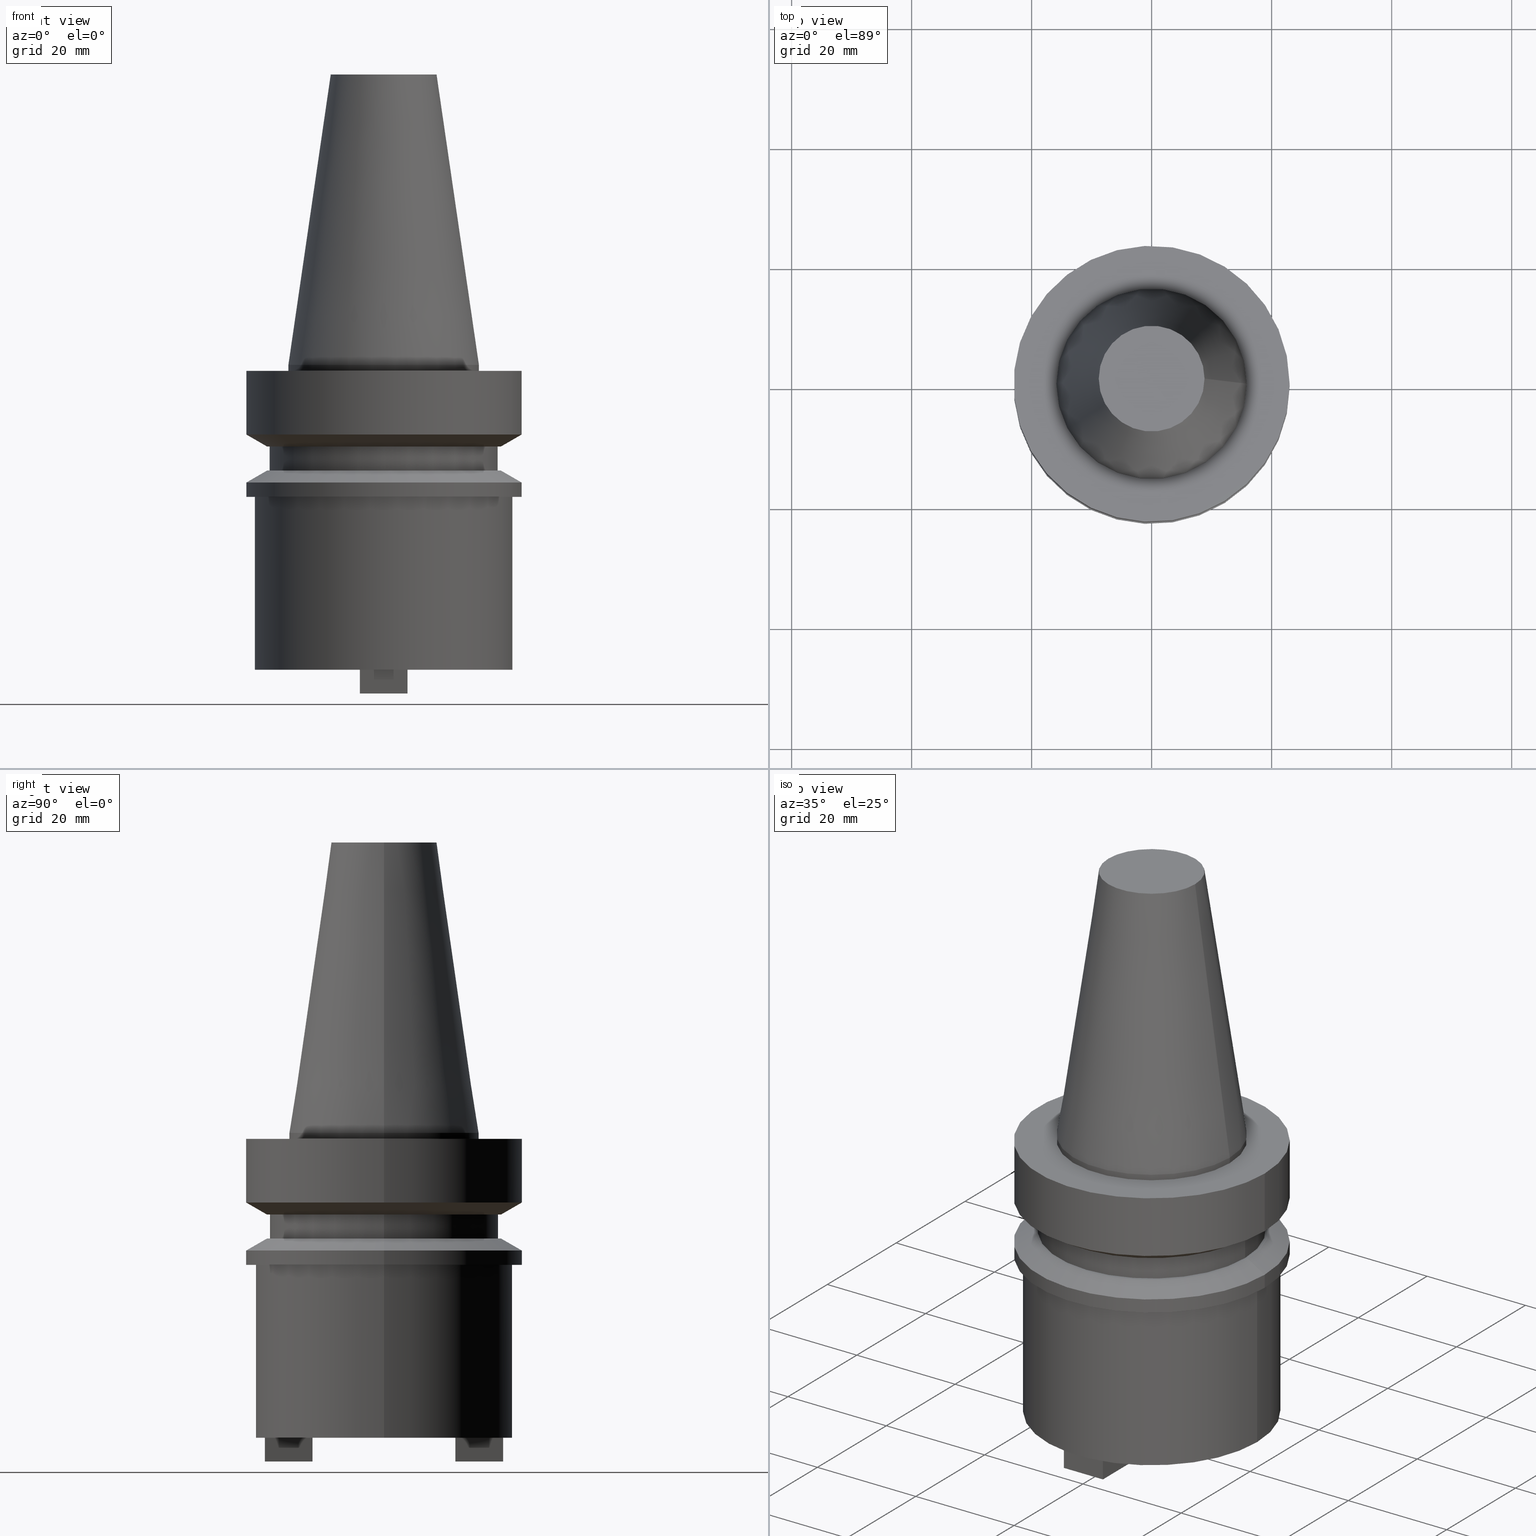
[diagram: canonical four-view strip — front | top / right | iso, engineering-drawing reading convention]
A machine part, canonical four-view strip (front | top / right | iso — engineering-drawing reading convention). The complete STEP part file that produces these views, byte-faithful:
ISO-10303-21;
HEADER;
FILE_DESCRIPTION (( 'STEP AP203' ),
    '1' );
FILE_NAME ('BBT30-SMC_750-2.stp',
    '2022-03-09T16:54:16',
    ( '' ),
    ( '' ),
    'SwSTEP 2.0',
    'SolidWorks 2021',
    '' );
FILE_SCHEMA (( 'CONFIG_CONTROL_DESIGN' ));
ENDSEC;

DATA;
#1 = CALENDAR_DATE ( 2022, 9, 3 ) ;
#2 = CARTESIAN_POINT ( 'NONE',  ( 0.000000000000000000, 0.000000000000000000, -1.000000000000000888 ) ) ;
#3 = EDGE_LOOP ( 'NONE', ( #561 ) ) ;
#4 = CARTESIAN_POINT ( 'NONE',  ( -3.970000000000000639, 19.84500000000000597, -50.79999999999999716 ) ) ;
#5 = EDGE_LOOP ( 'NONE', ( #606 ) ) ;
#6 = VECTOR ( 'NONE', #80, 1000.000000000000000 ) ;
#7 = AXIS2_PLACEMENT_3D ( 'NONE', #277, #8, #101 ) ;
#8 = DIRECTION ( 'NONE',  ( -0.000000000000000000, -0.000000000000000000, 1.000000000000000000 ) ) ;
#9 = ORIENTED_EDGE ( 'NONE', *, *, #676, .F. ) ;
#10 = LOCAL_TIME ( 10, 54, 16.00000000000000000, #319 ) ;
#11 = ADVANCED_FACE ( 'NONE', ( #325 ), #219, .F. ) ;
#12 = SHAPE_DEFINITION_REPRESENTATION ( #135, #603 ) ;
#13 = CARTESIAN_POINT ( 'NONE',  ( -3.970000000000001528, -19.84500000000000597, -54.75999999999999801 ) ) ;
#14 = CARTESIAN_POINT ( 'NONE',  ( 0.000000000000000000, 0.000000000000000000, -11.60014200631680126 ) ) ;
#15 = FACE_OUTER_BOUND ( 'NONE', #252, .T. ) ;
#16 = DIRECTION ( 'NONE',  ( 0.000000000000000000, 0.000000000000000000, -1.000000000000000000 ) ) ;
#17 = EDGE_CURVE ( 'NONE', #88, #88, #270, .T. ) ;
#18 = DIRECTION ( 'NONE',  ( 0.000000000000000000, 1.000000000000000000, 0.000000000000000000 ) ) ;
#19 = PLANE ( 'NONE',  #131 ) ;
#20 = AXIS2_PLACEMENT_3D ( 'NONE', #553, #644, #448 ) ;
#21 = DIRECTION ( 'NONE',  ( 1.000000000000000000, 0.000000000000000000, 0.000000000000000000 ) ) ;
#22 = PRODUCT_DEFINITION ( 'UNKNOWN', '', #237, #248 ) ;
#23 = CARTESIAN_POINT ( 'NONE',  ( 3.970000000000001972, -11.90500000000000469, -54.75999999999999801 ) ) ;
#24 = FACE_OUTER_BOUND ( 'NONE', #309, .T. ) ;
#25 = DIRECTION ( 'NONE',  ( 1.000000000000000000, 0.000000000000000000, 0.000000000000000000 ) ) ;
#26 = ORIENTED_EDGE ( 'NONE', *, *, #485, .F. ) ;
#27 = ADVANCED_FACE ( 'NONE', ( #501, #495 ), #453, .F. ) ;
#28 = FACE_OUTER_BOUND ( 'NONE', #573, .T. ) ;
#29 = FACE_BOUND ( 'NONE', #465, .T. ) ;
#30 = CIRCLE ( 'NONE', #488, 19.53589838486230690 ) ;
#31 = AXIS2_PLACEMENT_3D ( 'NONE', #2, #50, #672 ) ;
#32 = CARTESIAN_POINT ( 'NONE',  ( 19.00000000000000355, 0.000000000000000000, -17.60014200631680836 ) ) ;
#33 = FACE_OUTER_BOUND ( 'NONE', #330, .T. ) ;
#34 = ORIENTED_EDGE ( 'NONE', *, *, #102, .F. ) ;
#35 = CARTESIAN_POINT ( 'NONE',  ( 0.000000000000000000, 8.816600212367498912, 48.39999999999999147 ) ) ;
#36 = DIRECTION ( 'NONE',  ( -0.000000000000000000, -0.000000000000000000, 1.000000000000000000 ) ) ;
#37 = ORIENTED_EDGE ( 'NONE', *, *, #72, .T. ) ;
#38 = VERTEX_POINT ( 'NONE', #415 ) ;
#39 = EDGE_CURVE ( 'NONE', #187, #187, #467, .T. ) ;
#40 = FACE_BOUND ( 'NONE', #5, .T. ) ;
#41 = ORIENTED_EDGE ( 'NONE', *, *, #175, .F. ) ;
#42 = CONICAL_SURFACE ( 'NONE', #158, 19.53589838486230690, 1.047197551196589860 ) ;
#43 = VECTOR ( 'NONE', #572, 1000.000000000000000 ) ;
#44 = AXIS2_PLACEMENT_3D ( 'NONE', #539, #68, #282 ) ;
#45 = AXIS2_PLACEMENT_3D ( 'NONE', #597, #585, #21 ) ;
#46 = VERTEX_POINT ( 'NONE', #304 ) ;
#47 = FACE_OUTER_BOUND ( 'NONE', #408, .T. ) ;
#48 = VERTEX_POINT ( 'NONE', #23 ) ;
#49 = PERSON_AND_ORGANIZATION ( #337, #327 ) ;
#50 = DIRECTION ( 'NONE',  ( -0.000000000000000000, -0.000000000000000000, 1.000000000000000000 ) ) ;
#51 = ORIENTED_EDGE ( 'NONE', *, *, #352, .T. ) ;
#52 = EDGE_CURVE ( 'NONE', #227, #172, #189, .T. ) ;
#53 = DATE_TIME_ROLE ( 'classification_date' ) ;
#54 = LINE ( 'NONE', #4, #43 ) ;
#55 = VERTEX_POINT ( 'NONE', #341 ) ;
#56 = AXIS2_PLACEMENT_3D ( 'NONE', #663, #312, #610 ) ;
#57 = APPROVAL_ROLE ( '' ) ;
#58 = VECTOR ( 'NONE', #244, 1000.000000000000000 ) ;
#59 = DIRECTION ( 'NONE',  ( 1.000000000000000000, 0.000000000000000000, 0.000000000000000000 ) ) ;
#60 = ORIENTED_EDGE ( 'NONE', *, *, #186, .T. ) ;
#61 = CARTESIAN_POINT ( 'NONE',  ( -3.970000000000001528, 11.90500000000000114, -54.75999999999999801 ) ) ;
#62 = ORIENTED_EDGE ( 'NONE', *, *, #668, .T. ) ;
#63 = COORDINATED_UNIVERSAL_TIME_OFFSET ( 6, 0, .BEHIND. ) ;
#64 = DIRECTION ( 'NONE',  ( 1.092395136005545440E-16, 1.000000000000000000, -0.000000000000000000 ) ) ;
#65 = EDGE_CURVE ( 'NONE', #200, #255, #353, .T. ) ;
#66 = VERTEX_POINT ( 'NONE', #74 ) ;
#67 = VECTOR ( 'NONE', #355, 1000.000000000000000 ) ;
#68 = DIRECTION ( 'NONE',  ( 0.000000000000000000, 0.000000000000000000, -1.000000000000000000 ) ) ;
#69 = DIRECTION ( 'NONE',  ( -0.000000000000000000, -0.000000000000000000, 1.000000000000000000 ) ) ;
#70 = FACE_BOUND ( 'NONE', #608, .T. ) ;
#71 = CARTESIAN_POINT ( 'NONE',  ( 0.000000000000000000, 22.99999999999998934, -22.00000000000000000 ) ) ;
#72 = EDGE_CURVE ( 'NONE', #137, #137, #389, .T. ) ;
#73 = DIRECTION ( 'NONE',  ( 0.000000000000000000, -0.000000000000000000, 1.000000000000000000 ) ) ;
#74 = CARTESIAN_POINT ( 'NONE',  ( -3.970000000000000639, 19.84500000000000242, -50.79999999999999716 ) ) ;
#75 = DIRECTION ( 'NONE',  ( 0.000000000000000000, 0.000000000000000000, -1.000000000000000000 ) ) ;
#76 = DIRECTION ( 'NONE',  ( 1.000000000000000000, 0.000000000000000000, 0.000000000000000000 ) ) ;
#77 = VECTOR ( 'NONE', #324, 1000.000000000000000 ) ;
#78 = ORIENTED_EDGE ( 'NONE', *, *, #146, .T. ) ;
#79 = CYLINDRICAL_SURFACE ( 'NONE', #20, 23.00000000000000000 ) ;
#80 = DIRECTION ( 'NONE',  ( 1.000000000000000000, -4.369580544022183733E-16, -0.000000000000000000 ) ) ;
#81 = ORIENTED_EDGE ( 'NONE', *, *, #289, .T. ) ;
#82 =( NAMED_UNIT ( * ) PLANE_ANGLE_UNIT ( ) SI_UNIT ( $, .RADIAN. ) );
#83 = LINE ( 'NONE', #457, #67 ) ;
#84 = CARTESIAN_POINT ( 'NONE',  ( 15.87500000000000000, 0.000000000000000000, 0.000000000000000000 ) ) ;
#85 = DIRECTION ( 'NONE',  ( 0.000000000000000000, 0.000000000000000000, -1.000000000000000000 ) ) ;
#86 = CIRCLE ( 'NONE', #478, 19.53589838486230690 ) ;
#87 = ORIENTED_EDGE ( 'NONE', *, *, #297, .T. ) ;
#88 = VERTEX_POINT ( 'NONE', #148 ) ;
#89 = CARTESIAN_POINT ( 'NONE',  ( -3.970000000000000639, 19.84500000000000597, -54.75999999999999801 ) ) ;
#90 = EDGE_LOOP ( 'NONE', ( #94 ) ) ;
#91 = EDGE_CURVE ( 'NONE', #364, #364, #188, .T. ) ;
#92 = VERTEX_POINT ( 'NONE', #253 ) ;
#93 = CARTESIAN_POINT ( 'NONE',  ( 0.000000000000000000, 0.000000000000000000, 0.000000000000000000 ) ) ;
#94 = ORIENTED_EDGE ( 'NONE', *, *, #328, .T. ) ;
#95 = DIRECTION ( 'NONE',  ( 1.000000000000000000, 0.000000000000000000, 0.000000000000000000 ) ) ;
#96 = ORIENTED_EDGE ( 'NONE', *, *, #596, .F. ) ;
#97 = VECTOR ( 'NONE', #464, 1000.000000000000000 ) ;
#98 = CIRCLE ( 'NONE', #31, 15.87500000000000000 ) ;
#99 = CC_DESIGN_SECURITY_CLASSIFICATION ( #401, ( #237 ) ) ;
#100 = DATE_AND_TIME ( #581, #10 ) ;
#101 = DIRECTION ( 'NONE',  ( 1.000000000000000000, 0.000000000000000000, 0.000000000000000000 ) ) ;
#102 = EDGE_CURVE ( 'NONE', #440, #592, #285, .T. ) ;
#103 = ORIENTED_EDGE ( 'NONE', *, *, #272, .T. ) ;
#104 = PERSON_AND_ORGANIZATION ( #337, #327 ) ;
#105 = PLANE ( 'NONE',  #622 ) ;
#106 = ORIENTED_EDGE ( 'NONE', *, *, #421, .T. ) ;
#107 = APPROVAL ( #567, 'UNSPECIFIED' ) ;
#108 = CARTESIAN_POINT ( 'NONE',  ( 0.000000000000000000, 0.000000000000000000, -19.60014200631680836 ) ) ;
#109 = ORIENTED_EDGE ( 'NONE', *, *, #584, .T. ) ;
#110 = APPROVAL_DATE_TIME ( #216, #222 ) ;
#111 = CIRCLE ( 'NONE', #300, 19.00000000000000355 ) ;
#112 = LINE ( 'NONE', #535, #507 ) ;
#113 = ORIENTED_EDGE ( 'NONE', *, *, #155, .F. ) ;
#114 = DATE_AND_TIME ( #621, #225 ) ;
#115 = ADVANCED_FACE ( 'NONE', ( #351, #132 ), #294, .T. ) ;
#116 = LINE ( 'NONE', #220, #77 ) ;
#117 = ORIENTED_EDGE ( 'NONE', *, *, #136, .F. ) ;
#118 = FACE_BOUND ( 'NONE', #366, .T. ) ;
#119 = ORIENTED_EDGE ( 'NONE', *, *, #511, .F. ) ;
#120 = VECTOR ( 'NONE', #648, 1000.000000000000000 ) ;
#121 = CARTESIAN_POINT ( 'NONE',  ( 0.000000000000000000, 0.000000000000000000, -50.79999999999999716 ) ) ;
#122 = AXIS2_PLACEMENT_3D ( 'NONE', #275, #633, #171 ) ;
#123 = CARTESIAN_POINT ( 'NONE',  ( 0.000000000000000000, 0.000000000000000000, -22.00000000000000000 ) ) ;
#124 = ADVANCED_FACE ( 'NONE', ( #128 ), #19, .F. ) ;
#125 = FACE_OUTER_BOUND ( 'NONE', #586, .T. ) ;
#126 = DIRECTION ( 'NONE',  ( -0.000000000000000000, -0.000000000000000000, 1.000000000000000000 ) ) ;
#127 = CARTESIAN_POINT ( 'NONE',  ( 3.969999999999999751, -19.84500000000000597, -50.79999999999999716 ) ) ;
#128 = FACE_OUTER_BOUND ( 'NONE', #303, .T. ) ;
#129 = ORIENTED_EDGE ( 'NONE', *, *, #218, .T. ) ;
#130 = FACE_OUTER_BOUND ( 'NONE', #664, .T. ) ;
#131 = AXIS2_PLACEMENT_3D ( 'NONE', #446, #283, #642 ) ;
#132 = FACE_OUTER_BOUND ( 'NONE', #524, .T. ) ;
#133 = AXIS2_PLACEMENT_3D ( 'NONE', #662, #600, #198 ) ;
#134 = LOCAL_TIME ( 10, 54, 16.00000000000000000, #528 ) ;
#135 = PRODUCT_DEFINITION_SHAPE ( 'NONE', 'NONE',  #22 ) ;
#136 = EDGE_CURVE ( 'NONE', #400, #400, #30, .T. ) ;
#137 = VERTEX_POINT ( 'NONE', #194 ) ;
#138 = CARTESIAN_POINT ( 'NONE',  ( 3.970000000000001972, -11.90500000000000469, -50.79999999999999716 ) ) ;
#139 = CARTESIAN_POINT ( 'NONE',  ( 0.000000000000000000, 19.53589838486230690, -13.60014200631680303 ) ) ;
#140 = ORIENTED_EDGE ( 'NONE', *, *, #310, .T. ) ;
#141 = CARTESIAN_POINT ( 'NONE',  ( 0.000000000000000000, 0.000000000000000000, 0.000000000000000000 ) ) ;
#142 = PLANE ( 'NONE',  #223 ) ;
#143 = AXIS2_PLACEMENT_3D ( 'NONE', #123, #69, #25 ) ;
#144 = ORIENTED_EDGE ( 'NONE', *, *, #668, .F. ) ;
#145 = AXIS2_PLACEMENT_3D ( 'NONE', #555, #296, #505 ) ;
#146 = EDGE_CURVE ( 'NONE', #354, #354, #368, .T. ) ;
#147 = CC_DESIGN_APPROVAL ( #580, ( #22 ) ) ;
#148 = CARTESIAN_POINT ( 'NONE',  ( 21.44999999999999929, 0.000000000000000000, -50.79999999999999716 ) ) ;
#149 = CARTESIAN_POINT ( 'NONE',  ( 0.000000000000000000, 0.000000000000000000, -17.60014200631680836 ) ) ;
#150 = ORIENTED_EDGE ( 'NONE', *, *, #463, .T. ) ;
#151 = LINE ( 'NONE', #665, #281 ) ;
#152 = FACE_OUTER_BOUND ( 'NONE', #318, .T. ) ;
#153 = EDGE_LOOP ( 'NONE', ( #374, #536, #161, #614 ) ) ;
#154 = PERSON_AND_ORGANIZATION ( #337, #327 ) ;
#155 = EDGE_CURVE ( 'NONE', #405, #292, #181, .T. ) ;
#156 = CARTESIAN_POINT ( 'NONE',  ( 3.970000000000000639, 19.84500000000000242, -54.75999999999999801 ) ) ;
#157 = EDGE_LOOP ( 'NONE', ( #667 ) ) ;
#158 = AXIS2_PLACEMENT_3D ( 'NONE', #365, #411, #301 ) ;
#159 = CONICAL_SURFACE ( 'NONE', #550, 22.99999999999999645, 1.047197551196588972 ) ;
#160 = DIRECTION ( 'NONE',  ( 1.000000000000000000, 0.000000000000000000, 0.000000000000000000 ) ) ;
#161 = ORIENTED_EDGE ( 'NONE', *, *, #437, .F. ) ;
#162 = DATE_TIME_ROLE ( 'creation_date' ) ;
#163 = CARTESIAN_POINT ( 'NONE',  ( -3.969999999999998863, -11.90500000000000469, -54.75999999999999801 ) ) ;
#164 = EDGE_LOOP ( 'NONE', ( #557 ) ) ;
#165 = APPLICATION_PROTOCOL_DEFINITION ( 'international standard', 'config_control_design', 1994, #261 ) ;
#166 = CARTESIAN_POINT ( 'NONE',  ( 0.000000000000000000, 0.000000000000000000, -1.000000000000000888 ) ) ;
#167 = DIRECTION ( 'NONE',  ( 1.000000000000000000, 0.000000000000000000, 0.000000000000000000 ) ) ;
#168 = EDGE_CURVE ( 'NONE', #313, #292, #443, .T. ) ;
#169 = AXIS2_PLACEMENT_3D ( 'NONE', #598, #402, #601 ) ;
#170 = AXIS2_PLACEMENT_3D ( 'NONE', #530, #273, #369 ) ;
#171 = DIRECTION ( 'NONE',  ( -3.277185408016637677E-16, -1.000000000000000000, 0.000000000000000000 ) ) ;
#172 = VERTEX_POINT ( 'NONE', #288 ) ;
#173 = FACE_OUTER_BOUND ( 'NONE', #278, .T. ) ;
#174 = EDGE_LOOP ( 'NONE', ( #269 ) ) ;
#175 = EDGE_CURVE ( 'NONE', #377, #592, #391, .T. ) ;
#176 = DIRECTION ( 'NONE',  ( -0.000000000000000000, -0.000000000000000000, 1.000000000000000000 ) ) ;
#177 = DIRECTION ( 'NONE',  ( -0.000000000000000000, -0.000000000000000000, 1.000000000000000000 ) ) ;
#178 = DIRECTION ( 'NONE',  ( 0.000000000000000000, -1.000000000000000000, -0.000000000000000000 ) ) ;
#179 = CIRCLE ( 'NONE', #170, 22.99999999999999645 ) ;
#180 = CC_DESIGN_PERSON_AND_ORGANIZATION_ASSIGNMENT ( #104, #481, ( #237 ) ) ;
#181 = LINE ( 'NONE', #291, #455 ) ;
#182 = CARTESIAN_POINT ( 'NONE',  ( -3.970000000000000639, 19.84500000000000597, -54.75999999999999801 ) ) ;
#183 = LINE ( 'NONE', #451, #120 ) ;
#184 = DIRECTION ( 'NONE',  ( 1.092395136005545564E-16, 1.000000000000000000, 0.000000000000000000 ) ) ;
#185 = CARTESIAN_POINT ( 'NONE',  ( 3.969999999999997087, 11.90500000000000114, -50.79999999999999716 ) ) ;
#186 = EDGE_CURVE ( 'NONE', #46, #46, #422, .T. ) ;
#187 = VERTEX_POINT ( 'NONE', #84 ) ;
#188 = CIRCLE ( 'NONE', #548, 21.44999999999999929 ) ;
#189 = LINE ( 'NONE', #588, #6 ) ;
#190 = AXIS2_PLACEMENT_3D ( 'NONE', #320, #226, #59 ) ;
#191 = CC_DESIGN_DATE_AND_TIME_ASSIGNMENT ( #418, #162, ( #22 ) ) ;
#192 = PLANE ( 'NONE',  #674 ) ;
#193 = EDGE_LOOP ( 'NONE', ( #306 ) ) ;
#194 = CARTESIAN_POINT ( 'NONE',  ( 4.214999999999998082, 0.000000000000000000, -22.00000000000000000 ) ) ;
#195 = EDGE_CURVE ( 'NONE', #66, #516, #183, .T. ) ;
#196 = CARTESIAN_POINT ( 'NONE',  ( -3.969999999999998863, -11.90500000000000291, -50.79999999999999716 ) ) ;
#197 = EDGE_LOOP ( 'NONE', ( #37 ) ) ;
#198 = DIRECTION ( 'NONE',  ( 1.000000000000000000, 0.000000000000000000, 0.000000000000000000 ) ) ;
#199 = CARTESIAN_POINT ( 'NONE',  ( -3.969999999999998863, -11.90500000000000469, -54.75999999999999801 ) ) ;
#200 = VERTEX_POINT ( 'NONE', #185 ) ;
#201 = VECTOR ( 'NONE', #627, 1000.000000000000000 ) ;
#202 = VERTEX_POINT ( 'NONE', #609 ) ;
#203 = FACE_BOUND ( 'NONE', #164, .T. ) ;
#204 = ORIENTED_EDGE ( 'NONE', *, *, #272, .F. ) ;
#205 = DATE_AND_TIME ( #471, #447 ) ;
#206 = FACE_OUTER_BOUND ( 'NONE', #470, .T. ) ;
#207 = ORIENTED_EDGE ( 'NONE', *, *, #392, .T. ) ;
#208 = PERSON_AND_ORGANIZATION ( #337, #327 ) ;
#209 = CYLINDRICAL_SURFACE ( 'NONE', #190, 4.214999999999998082 ) ;
#210 = EDGE_LOOP ( 'NONE', ( #521 ) ) ;
#211 = AXIS2_PLACEMENT_3D ( 'NONE', #93, #85, #655 ) ;
#212 = CIRCLE ( 'NONE', #623, 22.99999999999999645 ) ;
#213 = PERSON_AND_ORGANIZATION ( #337, #327 ) ;
#214 = FACE_OUTER_BOUND ( 'NONE', #595, .T. ) ;
#215 = ORIENTED_EDGE ( 'NONE', *, *, #168, .F. ) ;
#216 = DATE_AND_TIME ( #1, #134 ) ;
#217 = CARTESIAN_POINT ( 'NONE',  ( 3.969999999999999751, -19.84500000000000597, -54.75999999999999801 ) ) ;
#218 = EDGE_CURVE ( 'NONE', #202, #202, #549, .T. ) ;
#219 = PLANE ( 'NONE',  #335 ) ;
#220 = CARTESIAN_POINT ( 'NONE',  ( 3.969999999999997087, 11.90500000000000114, -54.75999999999999801 ) ) ;
#221 = EDGE_LOOP ( 'NONE', ( #673 ) ) ;
#222 = APPROVAL ( #626, 'UNSPECIFIED' ) ;
#223 = AXIS2_PLACEMENT_3D ( 'NONE', #358, #660, #560 ) ;
#224 = CIRCLE ( 'NONE', #7, 19.00000000000000355 ) ;
#225 = LOCAL_TIME ( 10, 54, 16.00000000000000000, #522 ) ;
#226 = DIRECTION ( 'NONE',  ( -0.000000000000000000, -0.000000000000000000, 1.000000000000000000 ) ) ;
#227 = VERTEX_POINT ( 'NONE', #89 ) ;
#228 = ADVANCED_FACE ( 'NONE', ( #40, #468 ), #346, .T. ) ;
#229 = FACE_OUTER_BOUND ( 'NONE', #210, .T. ) ;
#230 = DIRECTION ( 'NONE',  ( -0.000000000000000000, -0.000000000000000000, 1.000000000000000000 ) ) ;
#231 = EDGE_CURVE ( 'NONE', #48, #377, #83, .T. ) ;
#232 = DIRECTION ( 'NONE',  ( -0.000000000000000000, -0.000000000000000000, 1.000000000000000000 ) ) ;
#233 = DIRECTION ( 'NONE',  ( -3.277185408016637677E-16, -1.000000000000000000, 0.000000000000000000 ) ) ;
#234 = AXIS2_PLACEMENT_3D ( 'NONE', #396, #666, #509 ) ;
#235 = VECTOR ( 'NONE', #537, 1000.000000000000000 ) ;
#236 = DIRECTION ( 'NONE',  ( 0.000000000000000000, -0.000000000000000000, 1.000000000000000000 ) ) ;
#237 = PRODUCT_DEFINITION_FORMATION_WITH_SPECIFIED_SOURCE ( 'ANY', '', #367, .NOT_KNOWN. ) ;
#238 = DIRECTION ( 'NONE',  ( -0.000000000000000000, -0.000000000000000000, 1.000000000000000000 ) ) ;
#239 = PLANE ( 'NONE',  #44 ) ;
#240 = CARTESIAN_POINT ( 'NONE',  ( 0.000000000000000000, 0.000000000000000000, -21.99999999999999289 ) ) ;
#241 = ADVANCED_FACE ( 'NONE', ( #152 ), #404, .F. ) ;
#242 = LINE ( 'NONE', #340, #350 ) ;
#243 = CARTESIAN_POINT ( 'NONE',  ( 0.000000000000000000, 0.000000000000000000, -22.00000000000000000 ) ) ;
#244 = DIRECTION ( 'NONE',  ( 1.000000000000000000, -0.000000000000000000, -0.000000000000000000 ) ) ;
#245 = AXIS2_PLACEMENT_3D ( 'NONE', #71, #492, #394 ) ;
#246 = FACE_OUTER_BOUND ( 'NONE', #3, .T. ) ;
#247 = AXIS2_PLACEMENT_3D ( 'NONE', #491, #18, #236 ) ;
#248 = DESIGN_CONTEXT ( 'detailed design', #261, 'design' ) ;
#249 = ADVANCED_FACE ( 'NONE', ( #251, #203 ), #42, .T. ) ;
#250 = CARTESIAN_POINT ( 'NONE',  ( 23.00000000000000355, 0.000000000000000000, -11.60014200631680126 ) ) ;
#251 = FACE_OUTER_BOUND ( 'NONE', #566, .T. ) ;
#252 = EDGE_LOOP ( 'NONE', ( #103, #119, #276, #429 ) ) ;
#253 = CARTESIAN_POINT ( 'NONE',  ( 19.00000000000000355, 0.000000000000000000, -13.60014200631680303 ) ) ;
#254 = FACE_BOUND ( 'NONE', #424, .T. ) ;
#255 = VERTEX_POINT ( 'NONE', #308 ) ;
#256 = VECTOR ( 'NONE', #669, 1000.000000000000000 ) ;
#257 = CARTESIAN_POINT ( 'NONE',  ( 3.969999999999999751, -19.84500000000000597, -50.79999999999999716 ) ) ;
#258 = ORIENTED_EDGE ( 'NONE', *, *, #289, .F. ) ;
#259 = AXIS2_PLACEMENT_3D ( 'NONE', #387, #75, #587 ) ;
#260 = VERTEX_POINT ( 'NONE', #651 ) ;
#261 = APPLICATION_CONTEXT ( 'configuration controlled 3d designs of mechanical parts and assemblies' ) ;
#262 = FACE_OUTER_BOUND ( 'NONE', #321, .T. ) ;
#263 = ORIENTED_EDGE ( 'NONE', *, *, #413, .T. ) ;
#264 = ADVANCED_FACE ( 'NONE', ( #33, #407 ), #192, .F. ) ;
#265 = LINE ( 'NONE', #163, #235 ) ;
#266 = ORIENTED_EDGE ( 'NONE', *, *, #328, .F. ) ;
#267 = APPROVAL_STATUS ( 'not_yet_approved' ) ;
#268 = LINE ( 'NONE', #637, #399 ) ;
#269 = ORIENTED_EDGE ( 'NONE', *, *, #72, .F. ) ;
#270 = CIRCLE ( 'NONE', #653, 21.44999999999999929 ) ;
#271 = AXIS2_PLACEMENT_3D ( 'NONE', #385, #178, #546 ) ;
#272 = EDGE_CURVE ( 'NONE', #592, #405, #565, .T. ) ;
#273 = DIRECTION ( 'NONE',  ( -0.000000000000000000, -0.000000000000000000, 1.000000000000000000 ) ) ;
#274 = ORIENTED_EDGE ( 'NONE', *, *, #474, .F. ) ;
#275 = CARTESIAN_POINT ( 'NONE',  ( 3.970000000000001972, -11.90500000000000469, -54.75999999999999801 ) ) ;
#276 = ORIENTED_EDGE ( 'NONE', *, *, #352, .F. ) ;
#277 = CARTESIAN_POINT ( 'NONE',  ( 0.000000000000000000, 0.000000000000000000, -13.60014200631680303 ) ) ;
#278 = EDGE_LOOP ( 'NONE', ( #140 ) ) ;
#279 = ADVANCED_FACE ( 'NONE', ( #47 ), #142, .T. ) ;
#280 = VECTOR ( 'NONE', #238, 1000.000000000000000 ) ;
#281 = VECTOR ( 'NONE', #357, 1000.000000000000000 ) ;
#282 = DIRECTION ( 'NONE',  ( -1.000000000000000000, 0.000000000000000000, -0.000000000000000000 ) ) ;
#283 = DIRECTION ( 'NONE',  ( -4.369580544022184226E-16, -1.000000000000000000, 0.000000000000000000 ) ) ;
#284 = FACE_OUTER_BOUND ( 'NONE', #370, .T. ) ;
#285 = LINE ( 'NONE', #138, #619 ) ;
#286 = ORIENTED_EDGE ( 'NONE', *, *, #52, .F. ) ;
#287 = PLANE ( 'NONE',  #247 ) ;
#288 = CARTESIAN_POINT ( 'NONE',  ( 3.970000000000000639, 19.84500000000000242, -54.75999999999999801 ) ) ;
#289 = EDGE_CURVE ( 'NONE', #172, #55, #416, .T. ) ;
#290 = DIRECTION ( 'NONE',  ( 1.000000000000000000, 0.000000000000000000, 0.000000000000000000 ) ) ;
#291 = CARTESIAN_POINT ( 'NONE',  ( -3.969999999999998863, -11.90500000000000469, -50.79999999999999716 ) ) ;
#292 = VERTEX_POINT ( 'NONE', #196 ) ;
#293 = CARTESIAN_POINT ( 'NONE',  ( 0.000000000000000000, 0.000000000000000000, 48.39999999999998437 ) ) ;
#294 = CYLINDRICAL_SURFACE ( 'NONE', #169, 22.99999999999999289 ) ;
#295 = ORIENTED_EDGE ( 'NONE', *, *, #485, .T. ) ;
#296 = DIRECTION ( 'NONE',  ( -0.000000000000000000, -0.000000000000000000, 1.000000000000000000 ) ) ;
#297 = EDGE_CURVE ( 'NONE', #48, #440, #563, .T. ) ;
#298 = VERTEX_POINT ( 'NONE', #514 ) ;
#299 = VECTOR ( 'NONE', #613, 1000.000000000000000 ) ;
#300 = AXIS2_PLACEMENT_3D ( 'NONE', #149, #472, #361 ) ;
#301 = DIRECTION ( 'NONE',  ( 1.000000000000000000, 0.000000000000000000, 0.000000000000000000 ) ) ;
#302 = AXIS2_PLACEMENT_3D ( 'NONE', #141, #462, #378 ) ;
#303 = EDGE_LOOP ( 'NONE', ( #386, #96, #286, #62 ) ) ;
#304 = CARTESIAN_POINT ( 'NONE',  ( 22.99999999999998934, 0.000000000000000000, -21.99999999999999289 ) ) ;
#305 = DIRECTION ( 'NONE',  ( -4.369580544022184226E-16, -1.000000000000000000, 0.000000000000000000 ) ) ;
#306 = ORIENTED_EDGE ( 'NONE', *, *, #91, .F. ) ;
#307 = CARTESIAN_POINT ( 'NONE',  ( 3.970000000000001972, -11.90500000000000469, -50.79999999999999716 ) ) ;
#308 = CARTESIAN_POINT ( 'NONE',  ( -3.970000000000001528, 11.90500000000000114, -50.79999999999999716 ) ) ;
#309 = EDGE_LOOP ( 'NONE', ( #679, #332, #543, #263 ) ) ;
#310 = EDGE_CURVE ( 'NONE', #360, #360, #86, .T. ) ;
#311 = AXIS2_PLACEMENT_3D ( 'NONE', #156, #556, #305 ) ;
#312 = DIRECTION ( 'NONE',  ( 0.000000000000000000, 0.000000000000000000, -1.000000000000000000 ) ) ;
#313 = VERTEX_POINT ( 'NONE', #199 ) ;
#314 = APPROVAL_PERSON_ORGANIZATION ( #154, #107, #57 ) ;
#315 = SECURITY_CLASSIFICATION_LEVEL ( 'unclassified' ) ;
#316 = LINE ( 'NONE', #376, #371 ) ;
#317 = PRODUCT_RELATED_PRODUCT_CATEGORY ( 'detail', '', ( #367 ) ) ;
#318 = EDGE_LOOP ( 'NONE', ( #295, #383, #258, #489 ) ) ;
#319 = COORDINATED_UNIVERSAL_TIME_OFFSET ( 6, 0, .BEHIND. ) ;
#320 = CARTESIAN_POINT ( 'NONE',  ( 0.000000000000000000, 0.000000000000000000, 0.000000000000000000 ) ) ;
#321 = EDGE_LOOP ( 'NONE', ( #625 ) ) ;
#322 = ADVANCED_FACE ( 'NONE', ( #254, #262 ), #617, .F. ) ;
#323 = PERSON_AND_ORGANIZATION_ROLE ( 'creator' ) ;
#324 = DIRECTION ( 'NONE',  ( -1.000000000000000000, 0.000000000000000000, 0.000000000000000000 ) ) ;
#325 = FACE_OUTER_BOUND ( 'NONE', #174, .T. ) ;
#326 = AXIS2_PLACEMENT_3D ( 'NONE', #14, #230, #594 ) ;
#327 = ORGANIZATION ( 'UNSPECIFIED', 'UNSPECIFIED', '' ) ;
#328 = EDGE_CURVE ( 'NONE', #456, #456, #111, .T. ) ;
#329 = CARTESIAN_POINT ( 'NONE',  ( -3.970000000000001528, 11.90500000000000114, -54.75999999999999801 ) ) ;
#330 = EDGE_LOOP ( 'NONE', ( #117 ) ) ;
#331 = DIRECTION ( 'NONE',  ( 0.000000000000000000, 0.000000000000000000, -1.000000000000000000 ) ) ;
#332 = ORIENTED_EDGE ( 'NONE', *, *, #463, .F. ) ;
#333 = FACE_OUTER_BOUND ( 'NONE', #650, .T. ) ;
#334 = EDGE_LOOP ( 'NONE', ( #78 ) ) ;
#335 = AXIS2_PLACEMENT_3D ( 'NONE', #431, #631, #167 ) ;
#336 = AXIS2_PLACEMENT_3D ( 'NONE', #35, #466, #409 ) ;
#337 = PERSON ( 'UNSPECIFIED', 'UNSPECIFIED', 'UNSPECIFIED', ('UNSPECIFIED'), ('UNSPECIFIED'), ('UNSPECIFIED') ) ;
#338 = DIRECTION ( 'NONE',  ( 0.000000000000000000, 1.000000000000000000, 0.000000000000000000 ) ) ;
#339 = CARTESIAN_POINT ( 'NONE',  ( -3.969999999999998863, -11.90500000000000469, -54.75999999999999801 ) ) ;
#340 = CARTESIAN_POINT ( 'NONE',  ( 3.970000000000000639, 19.84500000000000242, -54.75999999999999801 ) ) ;
#341 = CARTESIAN_POINT ( 'NONE',  ( 3.969999999999997087, 11.90500000000000114, -54.75999999999999801 ) ) ;
#342 = ADVANCED_FACE ( 'NONE', ( #518, #206 ), #419, .T. ) ;
#343 = DIRECTION ( 'NONE',  ( 1.000000000000000000, -1.092395136005545564E-16, 0.000000000000000000 ) ) ;
#344 = DIRECTION ( 'NONE',  ( 1.000000000000000000, 0.000000000000000000, 0.000000000000000000 ) ) ;
#345 = EDGE_LOOP ( 'NONE', ( #274 ) ) ;
#346 = CONICAL_SURFACE ( 'NONE', #211, 15.87500000000000000, 0.1448138426689024039 ) ;
#347 = ADVANCED_FACE ( 'NONE', ( #29, #246 ), #159, .T. ) ;
#348 = AXIS2_PLACEMENT_3D ( 'NONE', #544, #338, #73 ) ;
#349 = FACE_OUTER_BOUND ( 'NONE', #334, .T. ) ;
#350 = VECTOR ( 'NONE', #498, 1000.000000000000000 ) ;
#351 = FACE_OUTER_BOUND ( 'NONE', #345, .T. ) ;
#352 = EDGE_CURVE ( 'NONE', #377, #638, #578, .T. ) ;
#353 = LINE ( 'NONE', #497, #434 ) ;
#354 = VERTEX_POINT ( 'NONE', #250 ) ;
#355 = DIRECTION ( 'NONE',  ( -3.277185408016637677E-16, -1.000000000000000000, 0.000000000000000000 ) ) ;
#356 = EDGE_LOOP ( 'NONE', ( #113, #204, #34, #9 ) ) ;
#357 = DIRECTION ( 'NONE',  ( -0.000000000000000000, -0.000000000000000000, 1.000000000000000000 ) ) ;
#358 = CARTESIAN_POINT ( 'NONE',  ( 0.000000000000000000, 0.000000000000000000, -54.75999999999999801 ) ) ;
#359 = ORIENTED_EDGE ( 'NONE', *, *, #102, .T. ) ;
#360 = VERTEX_POINT ( 'NONE', #459 ) ;
#361 = DIRECTION ( 'NONE',  ( 1.000000000000000000, 0.000000000000000000, 0.000000000000000000 ) ) ;
#362 = ORIENTED_EDGE ( 'NONE', *, *, #155, .T. ) ;
#363 = EDGE_CURVE ( 'NONE', #638, #313, #265, .T. ) ;
#364 = VERTEX_POINT ( 'NONE', #403 ) ;
#365 = CARTESIAN_POINT ( 'NONE',  ( 0.000000000000000000, 0.000000000000000000, -13.60014200631680303 ) ) ;
#366 = EDGE_LOOP ( 'NONE', ( #109 ) ) ;
#367 = PRODUCT ( 'BBT30-SMC_750-2', 'BBT30-SMC_750-2', '', ( #432 ) ) ;
#368 = CIRCLE ( 'NONE', #326, 23.00000000000000355 ) ;
#369 = DIRECTION ( 'NONE',  ( 1.000000000000000000, 0.000000000000000000, 0.000000000000000000 ) ) ;
#370 = EDGE_LOOP ( 'NONE', ( #538 ) ) ;
#371 = VECTOR ( 'NONE', #630, 1000.000000000000000 ) ;
#372 = FACE_OUTER_BOUND ( 'NONE', #197, .T. ) ;
#373 = ADVANCED_FACE ( 'NONE', ( #214 ), #105, .F. ) ;
#374 = ORIENTED_EDGE ( 'NONE', *, *, #676, .T. ) ;
#375 = APPROVAL_ROLE ( '' ) ;
#376 = CARTESIAN_POINT ( 'NONE',  ( 3.970000000000001972, -11.90500000000000469, -54.75999999999999801 ) ) ;
#377 = VERTEX_POINT ( 'NONE', #430 ) ;
#378 = DIRECTION ( 'NONE',  ( 1.000000000000000000, 0.000000000000000000, 0.000000000000000000 ) ) ;
#379 = DIRECTION ( 'NONE',  ( -0.000000000000000000, -0.000000000000000000, 1.000000000000000000 ) ) ;
#380 = CARTESIAN_POINT ( 'NONE',  ( 0.000000000000000000, 0.000000000000000000, -50.79999999999999716 ) ) ;
#381 = COORDINATED_UNIVERSAL_TIME_OFFSET ( 6, 0, .BEHIND. ) ;
#382 = LINE ( 'NONE', #582, #469 ) ;
#383 = ORIENTED_EDGE ( 'NONE', *, *, #413, .F. ) ;
#384 = EDGE_CURVE ( 'NONE', #486, #227, #487, .T. ) ;
#385 = CARTESIAN_POINT ( 'NONE',  ( 3.970000000000001972, -11.90500000000000469, -54.75999999999999801 ) ) ;
#386 = ORIENTED_EDGE ( 'NONE', *, *, #195, .T. ) ;
#387 = CARTESIAN_POINT ( 'NONE',  ( 0.000000000000000000, 0.000000000000000000, -54.75999999999999801 ) ) ;
#388 = CARTESIAN_POINT ( 'NONE',  ( 3.969999999999999751, -19.84500000000000597, -54.75999999999999801 ) ) ;
#389 = CIRCLE ( 'NONE', #143, 4.214999999999998082 ) ;
#390 = PLANE ( 'NONE',  #551 ) ;
#391 = LINE ( 'NONE', #388, #280 ) ;
#392 = EDGE_CURVE ( 'NONE', #255, #66, #54, .T. ) ;
#393 = PLANE ( 'NONE',  #271 ) ;
#394 = DIRECTION ( 'NONE',  ( 1.000000000000000000, 0.000000000000000000, 0.000000000000000000 ) ) ;
#395 = FACE_OUTER_BOUND ( 'NONE', #153, .T. ) ;
#396 = CARTESIAN_POINT ( 'NONE',  ( 0.000000000000000000, 0.000000000000000000, 48.39999999999999858 ) ) ;
#397 = VECTOR ( 'NONE', #177, 1000.000000000000000 ) ;
#398 = EDGE_CURVE ( 'NONE', #92, #92, #224, .T. ) ;
#399 = VECTOR ( 'NONE', #476, 1000.000000000000000 ) ;
#400 = VERTEX_POINT ( 'NONE', #562 ) ;
#401 = SECURITY_CLASSIFICATION ( '', '', #315 ) ;
#402 = DIRECTION ( 'NONE',  ( -0.000000000000000000, -0.000000000000000000, 1.000000000000000000 ) ) ;
#403 = CARTESIAN_POINT ( 'NONE',  ( 21.44999999999999929, 0.000000000000000000, -22.00000000000000000 ) ) ;
#404 = PLANE ( 'NONE',  #311 ) ;
#405 = VERTEX_POINT ( 'NONE', #523 ) ;
#406 = VERTEX_POINT ( 'NONE', #508 ) ;
#407 = FACE_BOUND ( 'NONE', #221, .T. ) ;
#408 = EDGE_LOOP ( 'NONE', ( #510, #564, #81, #106 ) ) ;
#409 = DIRECTION ( 'NONE',  ( -1.000000000000000000, 0.000000000000000000, -0.000000000000000000 ) ) ;
#410 = AXIS2_PLACEMENT_3D ( 'NONE', #240, #449, #645 ) ;
#411 = DIRECTION ( 'NONE',  ( -0.000000000000000000, -0.000000000000000000, 1.000000000000000000 ) ) ;
#412 = ORIENTED_EDGE ( 'NONE', *, *, #437, .T. ) ;
#413 = EDGE_CURVE ( 'NONE', #55, #200, #268, .T. ) ;
#414 = APPLICATION_CONTEXT ( 'configuration controlled 3d designs of mechanical parts and assemblies' ) ;
#415 = CARTESIAN_POINT ( 'NONE',  ( 15.87500000000000000, 0.000000000000000000, -1.000000000000000888 ) ) ;
#416 = LINE ( 'NONE', #605, #97 ) ;
#417 = ORIENTED_EDGE ( 'NONE', *, *, #17, .F. ) ;
#418 = DATE_AND_TIME ( #533, #532 ) ;
#419 = CYLINDRICAL_SURFACE ( 'NONE', #145, 21.44999999999999929 ) ;
#420 = ORIENTED_EDGE ( 'NONE', *, *, #17, .T. ) ;
#421 = EDGE_CURVE ( 'NONE', #55, #486, #116, .T. ) ;
#422 = CIRCLE ( 'NONE', #410, 22.99999999999998934 ) ;
#423 = FACE_OUTER_BOUND ( 'NONE', #527, .T. ) ;
#424 = EDGE_LOOP ( 'NONE', ( #611 ) ) ;
#425 = AXIS2_PLACEMENT_3D ( 'NONE', #293, #176, #452 ) ;
#426 = APPROVAL_DATE_TIME ( #100, #107 ) ;
#427 = CC_DESIGN_DATE_AND_TIME_ASSIGNMENT ( #114, #53, ( #401 ) ) ;
#428 = FACE_OUTER_BOUND ( 'NONE', #661, .T. ) ;
#429 = ORIENTED_EDGE ( 'NONE', *, *, #175, .T. ) ;
#430 = CARTESIAN_POINT ( 'NONE',  ( 3.969999999999999751, -19.84500000000000597, -54.75999999999999801 ) ) ;
#431 = CARTESIAN_POINT ( 'NONE',  ( 0.000000000000000000, 22.99999999999998934, -22.00000000000000000 ) ) ;
#432 = MECHANICAL_CONTEXT ( 'NONE', #414, 'mechanical' ) ;
#433 = CARTESIAN_POINT ( 'NONE',  ( 3.970000000000001972, -11.90500000000001002, -50.79999999999999716 ) ) ;
#434 = VECTOR ( 'NONE', #545, 1000.000000000000000 ) ;
#435 = ORIENTED_EDGE ( 'NONE', *, *, #363, .T. ) ;
#436 = AXIS2_PLACEMENT_3D ( 'NONE', #121, #500, #290 ) ;
#437 = EDGE_CURVE ( 'NONE', #313, #48, #316, .T. ) ;
#438 = MANIFOLD_SOLID_BREP ( 'Boss-Extrude1', #632 ) ;
#439 = DIRECTION ( 'NONE',  ( -0.000000000000000000, -0.000000000000000000, 1.000000000000000000 ) ) ;
#440 = VERTEX_POINT ( 'NONE', #433 ) ;
#441 = CC_DESIGN_PERSON_AND_ORGANIZATION_ASSIGNMENT ( #525, #475, ( #367 ) ) ;
#442 = FACE_OUTER_BOUND ( 'NONE', #90, .T. ) ;
#443 = LINE ( 'NONE', #339, #397 ) ;
#444 = EDGE_CURVE ( 'NONE', #260, #260, #212, .T. ) ;
#445 = FACE_OUTER_BOUND ( 'NONE', #531, .T. ) ;
#446 = CARTESIAN_POINT ( 'NONE',  ( 3.970000000000000639, 19.84500000000000242, -54.75999999999999801 ) ) ;
#447 = LOCAL_TIME ( 10, 54, 16.00000000000000000, #63 ) ;
#448 = DIRECTION ( 'NONE',  ( 1.000000000000000000, 0.000000000000000000, 0.000000000000000000 ) ) ;
#449 = DIRECTION ( 'NONE',  ( -0.000000000000000000, -0.000000000000000000, 1.000000000000000000 ) ) ;
#450 = PLANE ( 'NONE',  #45 ) ;
#451 = CARTESIAN_POINT ( 'NONE',  ( 3.970000000000000639, 19.84500000000000242, -50.79999999999999716 ) ) ;
#452 = DIRECTION ( 'NONE',  ( 1.000000000000000000, 0.000000000000000000, 0.000000000000000000 ) ) ;
#453 = PLANE ( 'NONE',  #245 ) ;
#454 = ADVANCED_FACE ( 'NONE', ( #428, #372 ), #209, .F. ) ;
#455 = VECTOR ( 'NONE', #499, 1000.000000000000000 ) ;
#456 = VERTEX_POINT ( 'NONE', #32 ) ;
#457 = CARTESIAN_POINT ( 'NONE',  ( 3.970000000000001972, -11.90500000000000469, -54.75999999999999801 ) ) ;
#458 = ORIENTED_EDGE ( 'NONE', *, *, #493, .T. ) ;
#459 = CARTESIAN_POINT ( 'NONE',  ( 19.53589838486230690, 0.000000000000000000, -17.60014200631680836 ) ) ;
#460 = DIRECTION ( 'NONE',  ( 1.000000000000000000, 0.000000000000000000, 0.000000000000000000 ) ) ;
#461 = ORIENTED_EDGE ( 'NONE', *, *, #39, .T. ) ;
#462 = DIRECTION ( 'NONE',  ( 0.000000000000000000, 0.000000000000000000, 1.000000000000000000 ) ) ;
#463 = EDGE_CURVE ( 'NONE', #486, #255, #575, .T. ) ;
#464 = DIRECTION ( 'NONE',  ( -4.369580544022183733E-16, -1.000000000000000000, 0.000000000000000000 ) ) ;
#465 = EDGE_LOOP ( 'NONE', ( #473 ) ) ;
#466 = DIRECTION ( 'NONE',  ( 0.000000000000000000, 0.000000000000000000, -1.000000000000000000 ) ) ;
#467 = CIRCLE ( 'NONE', #529, 15.87500000000000000 ) ;
#468 = FACE_OUTER_BOUND ( 'NONE', #629, .T. ) ;
#469 = VECTOR ( 'NONE', #232, 1000.000000000000000 ) ;
#470 = EDGE_LOOP ( 'NONE', ( #420 ) ) ;
#471 = CALENDAR_DATE ( 2022, 9, 3 ) ;
#472 = DIRECTION ( 'NONE',  ( -0.000000000000000000, -0.000000000000000000, 1.000000000000000000 ) ) ;
#473 = ORIENTED_EDGE ( 'NONE', *, *, #310, .F. ) ;
#474 = EDGE_CURVE ( 'NONE', #298, #298, #179, .T. ) ;
#475 = PERSON_AND_ORGANIZATION_ROLE ( 'design_owner' ) ;
#476 = DIRECTION ( 'NONE',  ( -0.000000000000000000, -0.000000000000000000, 1.000000000000000000 ) ) ;
#477 = ORIENTED_EDGE ( 'NONE', *, *, #384, .F. ) ;
#478 = AXIS2_PLACEMENT_3D ( 'NONE', #512, #36, #95 ) ;
#479 = CARTESIAN_POINT ( 'NONE',  ( -3.970000000000000639, 19.84500000000000597, -54.75999999999999801 ) ) ;
#480 = ORIENTED_EDGE ( 'NONE', *, *, #146, .F. ) ;
#481 = PERSON_AND_ORGANIZATION_ROLE ( 'creator' ) ;
#482 = DIRECTION ( 'NONE',  ( -4.369580544022183733E-16, -1.000000000000000000, 0.000000000000000000 ) ) ;
#483 = ORIENTED_EDGE ( 'NONE', *, *, #39, .F. ) ;
#484 = DIRECTION ( 'NONE',  ( 3.277185408016637677E-16, 1.000000000000000000, 0.000000000000000000 ) ) ;
#485 = EDGE_CURVE ( 'NONE', #516, #200, #112, .T. ) ;
#486 = VERTEX_POINT ( 'NONE', #61 ) ;
#487 = LINE ( 'NONE', #479, #634 ) ;
#488 = AXIS2_PLACEMENT_3D ( 'NONE', #542, #126, #640 ) ;
#489 = ORIENTED_EDGE ( 'NONE', *, *, #596, .T. ) ;
#490 = CC_DESIGN_APPROVAL ( #222, ( #401 ) ) ;
#491 = CARTESIAN_POINT ( 'NONE',  ( 3.969999999999999751, -19.84500000000000597, -54.75999999999999801 ) ) ;
#492 = DIRECTION ( 'NONE',  ( 0.000000000000000000, -0.000000000000000000, 1.000000000000000000 ) ) ;
#493 = EDGE_CURVE ( 'NONE', #38, #38, #98, .T. ) ;
#494 = FACE_OUTER_BOUND ( 'NONE', #656, .T. ) ;
#495 = FACE_BOUND ( 'NONE', #193, .T. ) ;
#496 = CARTESIAN_POINT ( 'NONE',  ( 3.970000000000000639, 19.84500000000000242, -50.79999999999999716 ) ) ;
#497 = CARTESIAN_POINT ( 'NONE',  ( 3.969999999999997087, 11.90500000000000114, -50.79999999999999716 ) ) ;
#498 = DIRECTION ( 'NONE',  ( -0.000000000000000000, -0.000000000000000000, 1.000000000000000000 ) ) ;
#499 = DIRECTION ( 'NONE',  ( 3.277185408016637677E-16, 1.000000000000000000, -0.000000000000000000 ) ) ;
#500 = DIRECTION ( 'NONE',  ( -0.000000000000000000, -0.000000000000000000, 1.000000000000000000 ) ) ;
#501 = FACE_OUTER_BOUND ( 'NONE', #157, .T. ) ;
#502 = ADVANCED_FACE ( 'NONE', ( #423 ), #624, .F. ) ;
#503 = EDGE_LOOP ( 'NONE', ( #635, #670, #26, #570 ) ) ;
#504 = LINE ( 'NONE', #307, #58 ) ;
#505 = DIRECTION ( 'NONE',  ( 1.000000000000000000, 0.000000000000000000, 0.000000000000000000 ) ) ;
#506 = EDGE_LOOP ( 'NONE', ( #583 ) ) ;
#507 = VECTOR ( 'NONE', #482, 1000.000000000000000 ) ;
#508 = CARTESIAN_POINT ( 'NONE',  ( 4.214999999999999858, 0.000000000000000000, -50.79999999999999716 ) ) ;
#509 = DIRECTION ( 'NONE',  ( 1.000000000000000000, 0.000000000000000000, 0.000000000000000000 ) ) ;
#510 = ORIENTED_EDGE ( 'NONE', *, *, #384, .T. ) ;
#511 = EDGE_CURVE ( 'NONE', #638, #405, #382, .T. ) ;
#512 = CARTESIAN_POINT ( 'NONE',  ( 0.000000000000000000, 0.000000000000000000, -17.60014200631680836 ) ) ;
#513 = ORIENTED_EDGE ( 'NONE', *, *, #231, .T. ) ;
#514 = CARTESIAN_POINT ( 'NONE',  ( 22.99999999999999645, 0.000000000000000000, -19.60014200631680836 ) ) ;
#515 = DIRECTION ( 'NONE',  ( 0.000000000000000000, -0.000000000000000000, 1.000000000000000000 ) ) ;
#516 = VERTEX_POINT ( 'NONE', #496 ) ;
#517 = VECTOR ( 'NONE', #379, 1000.000000000000000 ) ;
#518 = FACE_OUTER_BOUND ( 'NONE', #506, .T. ) ;
#519 = CC_DESIGN_APPROVAL ( #107, ( #237 ) ) ;
#520 = ADVANCED_FACE ( 'NONE', ( #284, #349 ), #79, .T. ) ;
#521 = ORIENTED_EDGE ( 'NONE', *, *, #398, .F. ) ;
#522 = COORDINATED_UNIVERSAL_TIME_OFFSET ( 6, 0, .BEHIND. ) ;
#523 = CARTESIAN_POINT ( 'NONE',  ( -3.970000000000001528, -19.84500000000000597, -50.79999999999999716 ) ) ;
#524 = EDGE_LOOP ( 'NONE', ( #60 ) ) ;
#525 = PERSON_AND_ORGANIZATION ( #337, #327 ) ;
#526 = DIRECTION ( 'NONE',  ( -1.000000000000000000, 0.000000000000000000, 0.000000000000000000 ) ) ;
#527 = EDGE_LOOP ( 'NONE', ( #359, #41, #540, #87 ) ) ;
#528 = COORDINATED_UNIVERSAL_TIME_OFFSET ( 6, 0, .BEHIND. ) ;
#529 = AXIS2_PLACEMENT_3D ( 'NONE', #652, #547, #344 ) ;
#530 = CARTESIAN_POINT ( 'NONE',  ( 0.000000000000000000, 0.000000000000000000, -19.60014200631680836 ) ) ;
#531 = EDGE_LOOP ( 'NONE', ( #207, #144, #477, #150 ) ) ;
#532 = LOCAL_TIME ( 10, 54, 16.00000000000000000, #381 ) ;
#533 = CALENDAR_DATE ( 2022, 9, 3 ) ;
#534 = ADVANCED_FACE ( 'NONE', ( #445 ), #390, .F. ) ;
#535 = CARTESIAN_POINT ( 'NONE',  ( 3.970000000000000639, 19.84500000000000242, -50.79999999999999716 ) ) ;
#536 = ORIENTED_EDGE ( 'NONE', *, *, #297, .F. ) ;
#537 = DIRECTION ( 'NONE',  ( 3.277185408016637677E-16, 1.000000000000000000, -0.000000000000000000 ) ) ;
#538 = ORIENTED_EDGE ( 'NONE', *, *, #444, .F. ) ;
#539 = CARTESIAN_POINT ( 'NONE',  ( 0.000000000000000000, 19.00000000000000355, -17.60014200631680481 ) ) ;
#540 = ORIENTED_EDGE ( 'NONE', *, *, #231, .F. ) ;
#541 = CYLINDRICAL_SURFACE ( 'NONE', #425, 15.87500000000000000 ) ;
#542 = CARTESIAN_POINT ( 'NONE',  ( 0.000000000000000000, 0.000000000000000000, -13.60014200631680303 ) ) ;
#543 = ORIENTED_EDGE ( 'NONE', *, *, #421, .F. ) ;
#544 = CARTESIAN_POINT ( 'NONE',  ( 3.969999999999997087, 11.90500000000000114, -54.75999999999999801 ) ) ;
#545 = DIRECTION ( 'NONE',  ( -1.000000000000000000, 0.000000000000000000, 0.000000000000000000 ) ) ;
#546 = DIRECTION ( 'NONE',  ( 0.000000000000000000, 0.000000000000000000, -1.000000000000000000 ) ) ;
#547 = DIRECTION ( 'NONE',  ( -0.000000000000000000, -0.000000000000000000, 1.000000000000000000 ) ) ;
#548 = AXIS2_PLACEMENT_3D ( 'NONE', #243, #16, #76 ) ;
#549 = CIRCLE ( 'NONE', #234, 8.816600212367498912 ) ;
#550 = AXIS2_PLACEMENT_3D ( 'NONE', #108, #331, #526 ) ;
#551 = AXIS2_PLACEMENT_3D ( 'NONE', #182, #343, #184 ) ;
#552 = ADVANCED_FACE ( 'NONE', ( #494, #333 ), #541, .T. ) ;
#553 = CARTESIAN_POINT ( 'NONE',  ( 0.000000000000000000, 0.000000000000000000, 48.39999999999998437 ) ) ;
#554 = DIRECTION ( 'NONE',  ( 1.000000000000000000, 0.000000000000000000, 0.000000000000000000 ) ) ;
#555 = CARTESIAN_POINT ( 'NONE',  ( 0.000000000000000000, 0.000000000000000000, 0.000000000000000000 ) ) ;
#556 = DIRECTION ( 'NONE',  ( -1.000000000000000000, 4.369580544022184226E-16, 0.000000000000000000 ) ) ;
#557 = ORIENTED_EDGE ( 'NONE', *, *, #136, .T. ) ;
#558 = ADVANCED_FACE ( 'NONE', ( #395 ), #393, .F. ) ;
#559 =( LENGTH_UNIT ( ) NAMED_UNIT ( * ) SI_UNIT ( .MILLI., .METRE. ) );
#560 = DIRECTION ( 'NONE',  ( -1.000000000000000000, 0.000000000000000000, 0.000000000000000000 ) ) ;
#561 = ORIENTED_EDGE ( 'NONE', *, *, #474, .T. ) ;
#562 = CARTESIAN_POINT ( 'NONE',  ( 19.53589838486230690, 0.000000000000000000, -13.60014200631680303 ) ) ;
#563 = LINE ( 'NONE', #607, #299 ) ;
#564 = ORIENTED_EDGE ( 'NONE', *, *, #52, .T. ) ;
#565 = LINE ( 'NONE', #257, #256 ) ;
#566 = EDGE_LOOP ( 'NONE', ( #480 ) ) ;
#567 = APPROVAL_STATUS ( 'not_yet_approved' ) ;
#568 = ADVANCED_FACE ( 'NONE', ( #125 ), #593, .T. ) ;
#569 = DIRECTION ( 'NONE',  ( 1.000000000000000000, -3.277185408016637677E-16, 0.000000000000000000 ) ) ;
#570 = ORIENTED_EDGE ( 'NONE', *, *, #195, .F. ) ;
#571 = APPROVAL_DATE_TIME ( #205, #580 ) ;
#572 = DIRECTION ( 'NONE',  ( 1.092395136005545440E-16, 1.000000000000000000, -0.000000000000000000 ) ) ;
#573 = EDGE_LOOP ( 'NONE', ( #129 ) ) ;
#574 = PERSON_AND_ORGANIZATION ( #337, #327 ) ;
#575 = LINE ( 'NONE', #329, #517 ) ;
#576 = ORIENTED_EDGE ( 'NONE', *, *, #511, .T. ) ;
#577 = PERSON_AND_ORGANIZATION ( #337, #327 ) ;
#578 = LINE ( 'NONE', #217, #201 ) ;
#579 = ORIENTED_EDGE ( 'NONE', *, *, #584, .F. ) ;
#580 = APPROVAL ( #267, 'UNSPECIFIED' ) ;
#581 = CALENDAR_DATE ( 2022, 9, 3 ) ;
#582 = CARTESIAN_POINT ( 'NONE',  ( -3.970000000000001528, -19.84500000000000597, -54.75999999999999801 ) ) ;
#583 = ORIENTED_EDGE ( 'NONE', *, *, #91, .T. ) ;
#584 = EDGE_CURVE ( 'NONE', #406, #406, #643, .T. ) ;
#585 = DIRECTION ( 'NONE',  ( 0.000000000000000000, -0.000000000000000000, 1.000000000000000000 ) ) ;
#586 = EDGE_LOOP ( 'NONE', ( #435, #412, #513, #51 ) ) ;
#587 = DIRECTION ( 'NONE',  ( -1.000000000000000000, 0.000000000000000000, 0.000000000000000000 ) ) ;
#588 = CARTESIAN_POINT ( 'NONE',  ( 3.970000000000000639, 19.84500000000000242, -54.75999999999999801 ) ) ;
#589 =( GEOMETRIC_REPRESENTATION_CONTEXT ( 3 ) GLOBAL_UNCERTAINTY_ASSIGNED_CONTEXT ( ( #657 ) ) GLOBAL_UNIT_ASSIGNED_CONTEXT ( ( #559, #82, #659 ) ) REPRESENTATION_CONTEXT ( 'NONE', 'WORKASPACE' ) );
#590 = PLANE ( 'NONE',  #348 ) ;
#591 = DIRECTION ( 'NONE',  ( -0.000000000000000000, -0.000000000000000000, 1.000000000000000000 ) ) ;
#592 = VERTEX_POINT ( 'NONE', #127 ) ;
#593 = PLANE ( 'NONE',  #259 ) ;
#594 = DIRECTION ( 'NONE',  ( 1.000000000000000000, 0.000000000000000000, 0.000000000000000000 ) ) ;
#595 = EDGE_LOOP ( 'NONE', ( #362, #215, #618, #576 ) ) ;
#596 = EDGE_CURVE ( 'NONE', #172, #516, #242, .T. ) ;
#597 = CARTESIAN_POINT ( 'NONE',  ( 0.000000000000000000, 21.44999999999999929, -50.79999999999999716 ) ) ;
#598 = CARTESIAN_POINT ( 'NONE',  ( 0.000000000000000000, 0.000000000000000000, 48.39999999999998437 ) ) ;
#599 = APPROVAL_PERSON_ORGANIZATION ( #213, #222, #375 ) ;
#600 = DIRECTION ( 'NONE',  ( -0.000000000000000000, -0.000000000000000000, 1.000000000000000000 ) ) ;
#601 = DIRECTION ( 'NONE',  ( 1.000000000000000000, 0.000000000000000000, 0.000000000000000000 ) ) ;
#602 = APPLICATION_PROTOCOL_DEFINITION ( 'international standard', 'config_control_design', 1994, #414 ) ;
#603 = ADVANCED_BREP_SHAPE_REPRESENTATION ( 'BBT30-SMC_750-2', ( #438, #302 ), #589 ) ;
#604 = ADVANCED_FACE ( 'NONE', ( #641, #130, #118, #647 ), #450, .F. ) ;
#605 = CARTESIAN_POINT ( 'NONE',  ( 3.970000000000000639, 19.84500000000000242, -54.75999999999999801 ) ) ;
#606 = ORIENTED_EDGE ( 'NONE', *, *, #218, .F. ) ;
#607 = CARTESIAN_POINT ( 'NONE',  ( 3.970000000000001972, -11.90500000000000469, -54.75999999999999801 ) ) ;
#608 = EDGE_LOOP ( 'NONE', ( #266 ) ) ;
#609 = CARTESIAN_POINT ( 'NONE',  ( 8.816600212367498912, 0.000000000000000000, 48.39999999999999858 ) ) ;
#610 = DIRECTION ( 'NONE',  ( -1.000000000000000000, 0.000000000000000000, -0.000000000000000000 ) ) ;
#611 = ORIENTED_EDGE ( 'NONE', *, *, #493, .F. ) ;
#612 = PLANE ( 'NONE',  #336 ) ;
#613 = DIRECTION ( 'NONE',  ( -0.000000000000000000, -0.000000000000000000, 1.000000000000000000 ) ) ;
#614 = ORIENTED_EDGE ( 'NONE', *, *, #168, .T. ) ;
#615 = ADVANCED_FACE ( 'NONE', ( #24 ), #590, .F. ) ;
#616 = APPROVAL_ROLE ( '' ) ;
#617 = PLANE ( 'NONE',  #56 ) ;
#618 = ORIENTED_EDGE ( 'NONE', *, *, #363, .F. ) ;
#619 = VECTOR ( 'NONE', #233, 1000.000000000000000 ) ;
#620 = CC_DESIGN_PERSON_AND_ORGANIZATION_ASSIGNMENT ( #208, #323, ( #22 ) ) ;
#621 = CALENDAR_DATE ( 2022, 9, 3 ) ;
#622 = AXIS2_PLACEMENT_3D ( 'NONE', #678, #569, #484 ) ;
#623 = AXIS2_PLACEMENT_3D ( 'NONE', #166, #439, #160 ) ;
#624 = PLANE ( 'NONE',  #122 ) ;
#625 = ORIENTED_EDGE ( 'NONE', *, *, #444, .T. ) ;
#626 = APPROVAL_STATUS ( 'not_yet_approved' ) ;
#627 = DIRECTION ( 'NONE',  ( -1.000000000000000000, 0.000000000000000000, 0.000000000000000000 ) ) ;
#628 = ADVANCED_FACE ( 'NONE', ( #70, #173 ), #239, .F. ) ;
#629 = EDGE_LOOP ( 'NONE', ( #461 ) ) ;
#630 = DIRECTION ( 'NONE',  ( 1.000000000000000000, -0.000000000000000000, -0.000000000000000000 ) ) ;
#631 = DIRECTION ( 'NONE',  ( 0.000000000000000000, -0.000000000000000000, 1.000000000000000000 ) ) ;
#632 = CLOSED_SHELL ( 'NONE', ( #604, #27, #228, #654, #115, #347, #628, #646, #264, #249, #520, #322, #552, #342, #454, #11, #534, #124, #241, #615, #279, #373, #558, #502, #636, #568 ) ) ;
#633 = DIRECTION ( 'NONE',  ( -1.000000000000000000, 3.277185408016637677E-16, 0.000000000000000000 ) ) ;
#634 = VECTOR ( 'NONE', #64, 1000.000000000000000 ) ;
#635 = ORIENTED_EDGE ( 'NONE', *, *, #392, .F. ) ;
#636 = ADVANCED_FACE ( 'NONE', ( #15 ), #287, .F. ) ;
#637 = CARTESIAN_POINT ( 'NONE',  ( 3.969999999999997087, 11.90500000000000114, -54.75999999999999801 ) ) ;
#638 = VERTEX_POINT ( 'NONE', #13 ) ;
#639 = CYLINDRICAL_SURFACE ( 'NONE', #133, 19.00000000000000355 ) ;
#640 = DIRECTION ( 'NONE',  ( 1.000000000000000000, 0.000000000000000000, 0.000000000000000000 ) ) ;
#641 = FACE_BOUND ( 'NONE', #503, .T. ) ;
#642 = DIRECTION ( 'NONE',  ( 1.000000000000000000, -4.369580544022184226E-16, 0.000000000000000000 ) ) ;
#643 = CIRCLE ( 'NONE', #436, 4.214999999999999858 ) ;
#644 = DIRECTION ( 'NONE',  ( -0.000000000000000000, -0.000000000000000000, 1.000000000000000000 ) ) ;
#645 = DIRECTION ( 'NONE',  ( 1.000000000000000000, 0.000000000000000000, 0.000000000000000000 ) ) ;
#646 = ADVANCED_FACE ( 'NONE', ( #229, #442 ), #639, .T. ) ;
#647 = FACE_BOUND ( 'NONE', #356, .T. ) ;
#648 = DIRECTION ( 'NONE',  ( 1.000000000000000000, -4.369580544022183733E-16, -0.000000000000000000 ) ) ;
#649 = CC_DESIGN_PERSON_AND_ORGANIZATION_ASSIGNMENT ( #49, #675, ( #401 ) ) ;
#650 = EDGE_LOOP ( 'NONE', ( #458 ) ) ;
#651 = CARTESIAN_POINT ( 'NONE',  ( 22.99999999999999645, 0.000000000000000000, -1.000000000000000888 ) ) ;
#652 = CARTESIAN_POINT ( 'NONE',  ( 0.000000000000000000, 0.000000000000000000, 0.000000000000000000 ) ) ;
#653 = AXIS2_PLACEMENT_3D ( 'NONE', #380, #591, #554 ) ;
#654 = ADVANCED_FACE ( 'NONE', ( #28 ), #612, .F. ) ;
#655 = DIRECTION ( 'NONE',  ( -1.000000000000000000, 0.000000000000000000, 0.000000000000000000 ) ) ;
#656 = EDGE_LOOP ( 'NONE', ( #483 ) ) ;
#657 = UNCERTAINTY_MEASURE_WITH_UNIT (LENGTH_MEASURE( 1.000000000000000082E-05 ), #559, 'distance_accuracy_value', 'NONE');
#658 = CC_DESIGN_PERSON_AND_ORGANIZATION_ASSIGNMENT ( #577, #671, ( #237 ) ) ;
#659 =( NAMED_UNIT ( * ) SI_UNIT ( $, .STERADIAN. ) SOLID_ANGLE_UNIT ( ) );
#660 = DIRECTION ( 'NONE',  ( 0.000000000000000000, 0.000000000000000000, -1.000000000000000000 ) ) ;
#661 = EDGE_LOOP ( 'NONE', ( #579 ) ) ;
#662 = CARTESIAN_POINT ( 'NONE',  ( 0.000000000000000000, 0.000000000000000000, 48.39999999999998437 ) ) ;
#663 = CARTESIAN_POINT ( 'NONE',  ( 0.000000000000000000, 22.99999999999999645, -0.9999999999999995559 ) ) ;
#664 = EDGE_LOOP ( 'NONE', ( #417 ) ) ;
#665 = CARTESIAN_POINT ( 'NONE',  ( -3.970000000000000639, 19.84500000000000597, -54.75999999999999801 ) ) ;
#666 = DIRECTION ( 'NONE',  ( -0.000000000000000000, -0.000000000000000000, 1.000000000000000000 ) ) ;
#667 = ORIENTED_EDGE ( 'NONE', *, *, #186, .F. ) ;
#668 = EDGE_CURVE ( 'NONE', #227, #66, #151, .T. ) ;
#669 = DIRECTION ( 'NONE',  ( -1.000000000000000000, 0.000000000000000000, 0.000000000000000000 ) ) ;
#670 = ORIENTED_EDGE ( 'NONE', *, *, #65, .F. ) ;
#671 = PERSON_AND_ORGANIZATION_ROLE ( 'design_supplier' ) ;
#672 = DIRECTION ( 'NONE',  ( 1.000000000000000000, 0.000000000000000000, 0.000000000000000000 ) ) ;
#673 = ORIENTED_EDGE ( 'NONE', *, *, #398, .T. ) ;
#674 = AXIS2_PLACEMENT_3D ( 'NONE', #139, #515, #460 ) ;
#675 = PERSON_AND_ORGANIZATION_ROLE ( 'classification_officer' ) ;
#676 = EDGE_CURVE ( 'NONE', #292, #440, #504, .T. ) ;
#677 = APPROVAL_PERSON_ORGANIZATION ( #574, #580, #616 ) ;
#678 = CARTESIAN_POINT ( 'NONE',  ( -3.969999999999998863, -11.90500000000000469, -54.75999999999999801 ) ) ;
#679 = ORIENTED_EDGE ( 'NONE', *, *, #65, .T. ) ;
ENDSEC;
END-ISO-10303-21;
